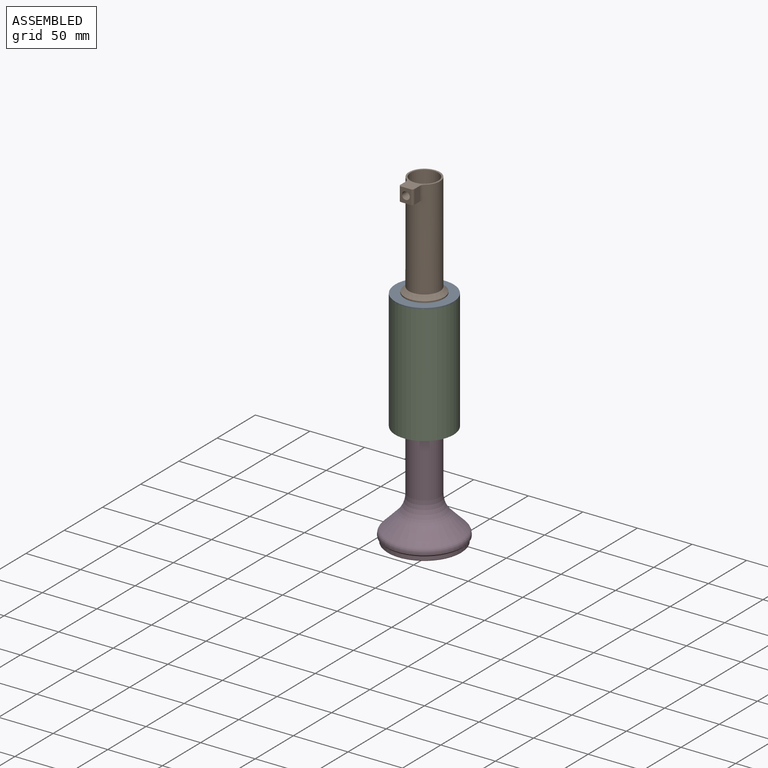
[diagram: assembled view]
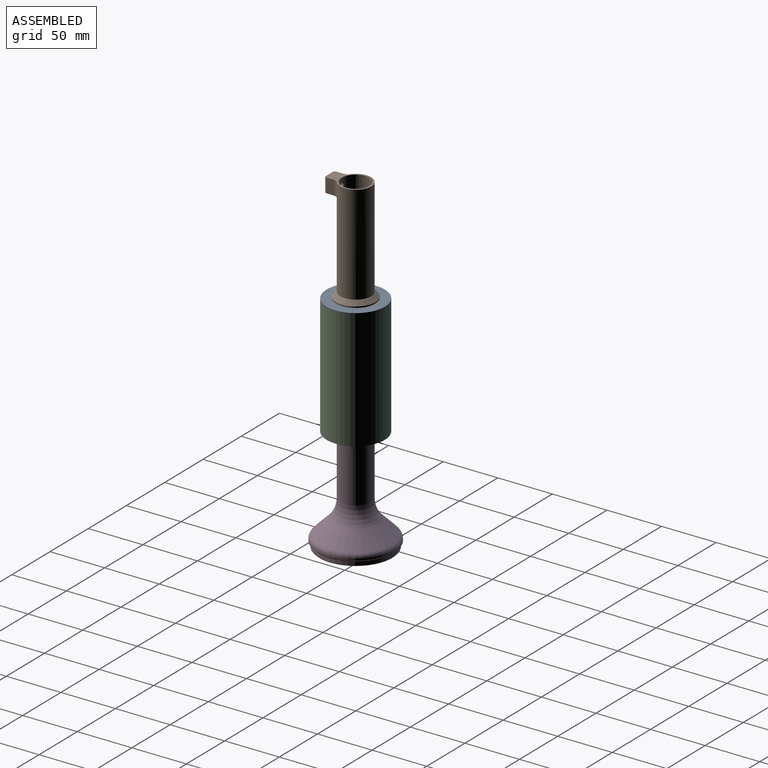
[diagram: assembled view, second angle]
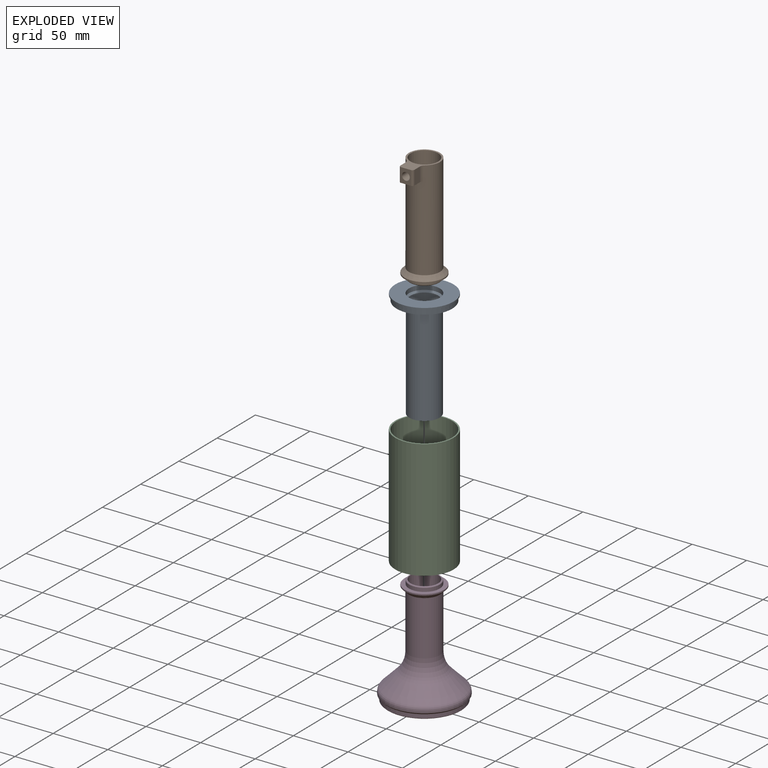
[diagram: exploded view]
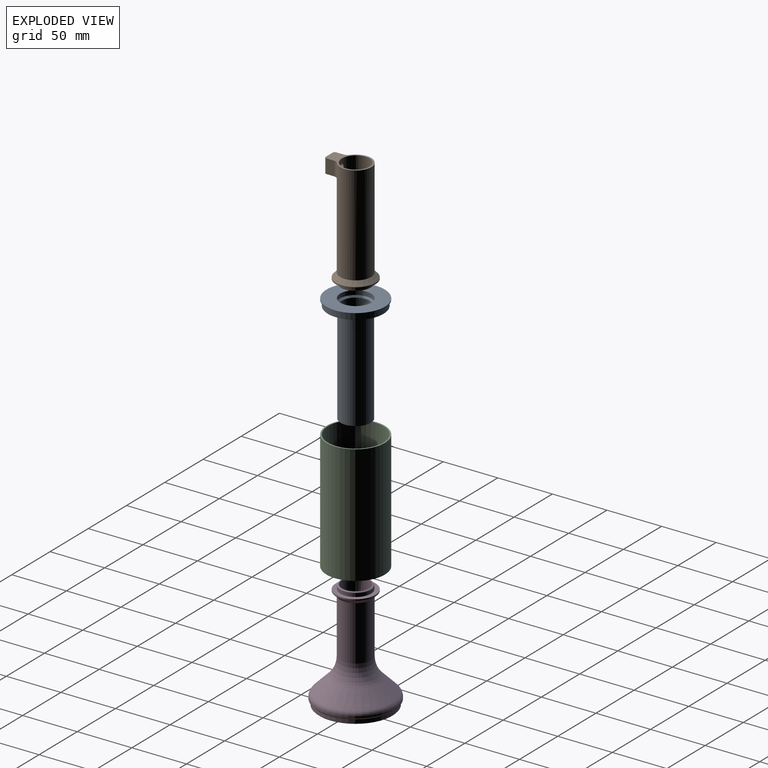
[diagram: exploded view, second angle]
ASSEMBLY  parts=4 mates=3
PART A: 11 faces, bbox 53.4x53.4x99.5 mm
  f0: cylinder r=12.7mm len=94mm, axis (0,0,1), area 7500.9mm2, adj f1,f9
  f1: plane 27.8x27.8mm, normal (0,0,-1), area 100.3mm2, adj f0,f2
  f2: cylinder r=13.9mm len=92.3mm, axis (0,0,1), area 8061.1mm2, adj f1,f10
  f3: plane 51x51mm, normal (0,0,-1), area 1345.4mm2, adj f4,f10
  f4: cylinder r=25.5mm len=51mm, axis (0,0,1), area 801.1mm2, adj f3,f5
  f5: plane 53.4x53.4mm, normal (0,0,-1), area 196.8mm2, adj f4,f6
  f6: cylinder r=26.7mm len=53.4mm, axis (0,0,1), area 201.3mm2, adj f5,f7
  f7: plane 53.4x53.4mm, normal (0,0,1), area 1606.1mm2, adj f6,f8
  f8: cylinder r=14.2mm len=28.4mm, axis (0,0,1), area 356.9mm2, adj f7,f9
  f9: cone r=14.2mm half-angle=45deg, axis (0,0,1), area 179.3mm2, adj f0,f8
  f10: cone r=14.9mm half-angle=45deg, axis (0,0,1), area 128mm2, adj f2,f3
PART B: 20 faces, bbox 36.2x42.4x100 mm
  f0: cylinder r=14.25mm len=90.95mm, axis (0,0,-1), area 7906mm2, adj f3,f4,f11,f14,f15
  f1: plane 36.2x36.2mm, normal (0,0,-1), area 404.6mm2, adj f2,f7
  f2: cylinder r=18.1mm len=36.2mm, axis (0,0,-1), area 136.5mm2, adj f1,f3
  f3: cone r=18.1mm half-angle=45deg, axis (0,0,-1), area 553.3mm2, adj f0,f2
  f4: plane 38.5x28.5mm, normal (0,0,1), area 268.3mm2, adj f0,f5,f8,f9,f10,f12,f13,f14
  f5: cylinder r=12.7mm len=100mm, axis (0,0,-1), area 7963.8mm2, adj f4,f6,f18
  f6: plane 27x27mm, normal (0,0,-1), area 65.8mm2, adj f5,f19
  f7: cylinder r=14.1mm len=28.2mm, axis (0,0,-1), area 301.2mm2, adj f1,f19
  f8: plane 13x6.81mm, normal (1,0,0), area 88.6mm2, adj f4,f11,f13,f14
  f9: plane 13x6.81mm, normal (-1,0,0), area 88.6mm2, adj f4,f11,f12,f15
  f10: plane 13x9mm, normal (0,-1,0), area 77.4mm2, adj f4,f11,f12,f13,f16
  f11: plane 17.03x12.82mm, normal (0,0,-1), area 137.1mm2, adj f0,f8,f9,f10,f12,f13,f14,f15
  f12: cylinder r=2mm len=13mm, axis (0,0,1), area 40.8mm2, adj f4,f9,f10,f11
  f13: cylinder r=2mm len=13mm, axis (0,0,1), area 40.8mm2, adj f4,f8,f10,f11
  f14: cylinder r=5mm len=13mm, axis (0,0,-1), area 60.5mm2, adj f0,f4,f8,f11
  f15: cylinder r=5mm len=13mm, axis (0,0,-1), area 60.5mm2, adj f0,f4,f9,f11
  f16: cylinder r=3.55mm len=10.93mm, axis (0,-1,0), area 243.8mm2, adj f10,f17
  f17: plane 7.1x7.1mm, normal (0,-1,0), area 23.7mm2, adj f16,f18
  f18: cylinder r=2.25mm len=4.5mm, axis (0,-1,0), area 10.2mm2, adj f5,f17
  f19: cone r=13.5mm half-angle=45deg, axis (0,0,1), area 73.6mm2, adj f6,f7
PART C: 6 faces, bbox 53.4x53.4x109 mm
  f0: cylinder r=14.2mm len=28.4mm, axis (0,0,-1), area 356.9mm2, adj f1,f5
  f1: plane 53.44x53.44mm, normal (0,0,-1), area 1609.5mm2, adj f0,f2
  f2: cylinder r=26.72mm len=109mm, axis (0,0,-1), area 18299.7mm2, adj f1,f3
  f3: plane 53.44x53.44mm, normal (0,0,1), area 200.1mm2, adj f2,f4
  f4: cylinder r=25.5mm len=105mm, axis (0,0,-1), area 16823.2mm2, adj f3,f5
  f5: plane 51x51mm, normal (0,0,1), area 1409.3mm2, adj f0,f4
PART D: 20 faces, bbox 77x77x100 mm
  f0: cone r=34.09mm half-angle=45deg, axis (0,0,1), area 3094.3mm2, adj f1,f17
  f1: torus R=30.55mm, axis (0,0,-1), area 864.9mm2, adj f0,f2
  f2: cylinder r=35.55mm len=71.1mm, axis (0,0,-1), area 375mm2, adj f1,f3
  f3: cone r=34mm half-angle=45deg, axis (0,0,-1), area 479mm2, adj f2,f4
  f4: cylinder r=34mm len=68mm, axis (0,0,-1), area 726.3mm2, adj f3,f19
  f5: plane 66.8x66.8mm, normal (0,0,1), area 426.8mm2, adj f6,f19
  f6: cylinder r=31.3mm len=62.6mm, axis (0,0,-1), area 1545.4mm2, adj f5,f7
  f7: torus R=21.3mm, axis (0,0,-1), area 1495.4mm2, adj f6,f8
  f8: cone r=28.37mm half-angle=45deg, axis (0,0,1), area 1795mm2, adj f7,f9
  f9: torus R=37.7mm, axis (0,0,-1), area 1874.2mm2, adj f8,f10
  f10: cylinder r=12.7mm len=59.04mm, axis (0,0,-1), area 4711.6mm2, adj f9,f11
  f11: plane 27x27mm, normal (0,0,-1), area 65.8mm2, adj f10,f18
  f12: cylinder r=14.1mm len=28.2mm, axis (0,0,-1), area 301.2mm2, adj f13,f18
  f13: plane 36.2x36.2mm, normal (0,0,-1), area 404.6mm2, adj f12,f14
  f14: cylinder r=18.1mm len=36.2mm, axis (0,0,-1), area 136.5mm2, adj f13,f15
  f15: cone r=18.1mm half-angle=45deg, axis (0,0,-1), area 553.3mm2, adj f14,f16
  f16: cylinder r=14.25mm len=49.99mm, axis (0,0,-1), area 4476.3mm2, adj f15,f17
  f17: torus R=39.25mm, axis (0,0,-1), area 2065.5mm2, adj f0,f16
  f18: cone r=13.5mm half-angle=45deg, axis (0,0,1), area 73.6mm2, adj f11,f12
  f19: cone r=34mm half-angle=45deg, axis (0,0,-1), area 179.7mm2, adj f4,f5
PLACE A at identity
PLACE B t=(0,0,2.5)mm
PLACE C t=(0,0,-104)mm
PLACE D rot(axis=(1,0,0),180deg) t=(0,0,-100)mm
MATE cylindrical C.f0 <-> A.f0  axis (0,0,-1) through (0,0,5)mm
MATE cylindrical B.f0 <-> A.f0  axis (0,0,-1) through (0,0,6.5)mm
MATE cylindrical D.f0 <-> C.f0  axis (0,0,1) through (0,0,-104)mm
